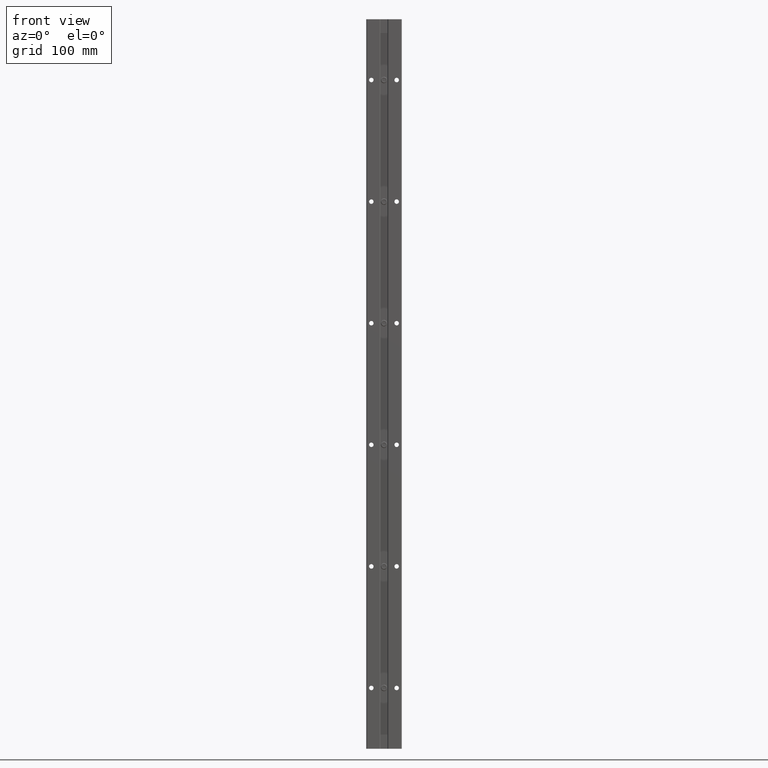
[diagram: clean part render]
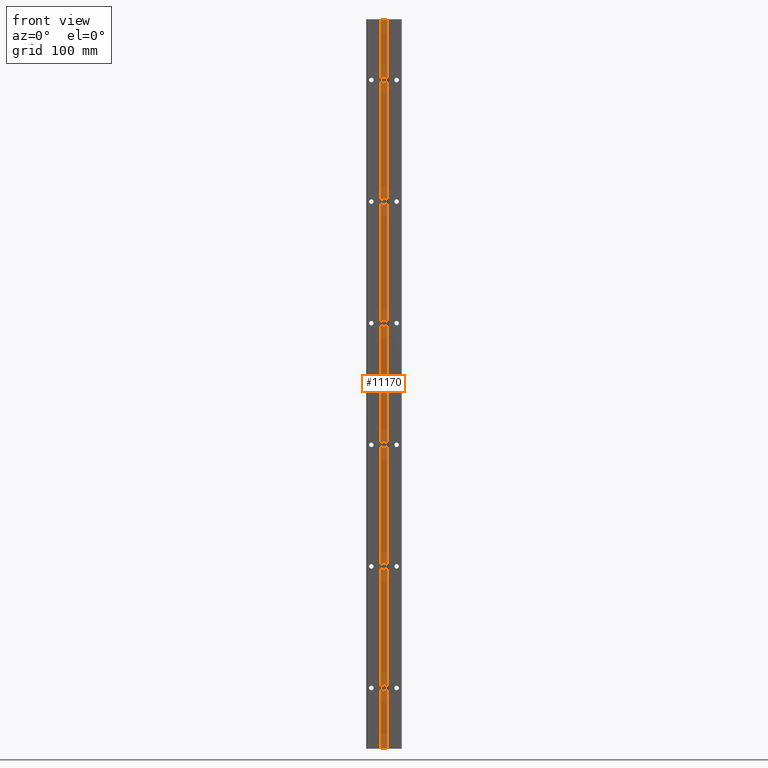
[diagram: same view with one face highlighted and labeled with its STEP entity id]
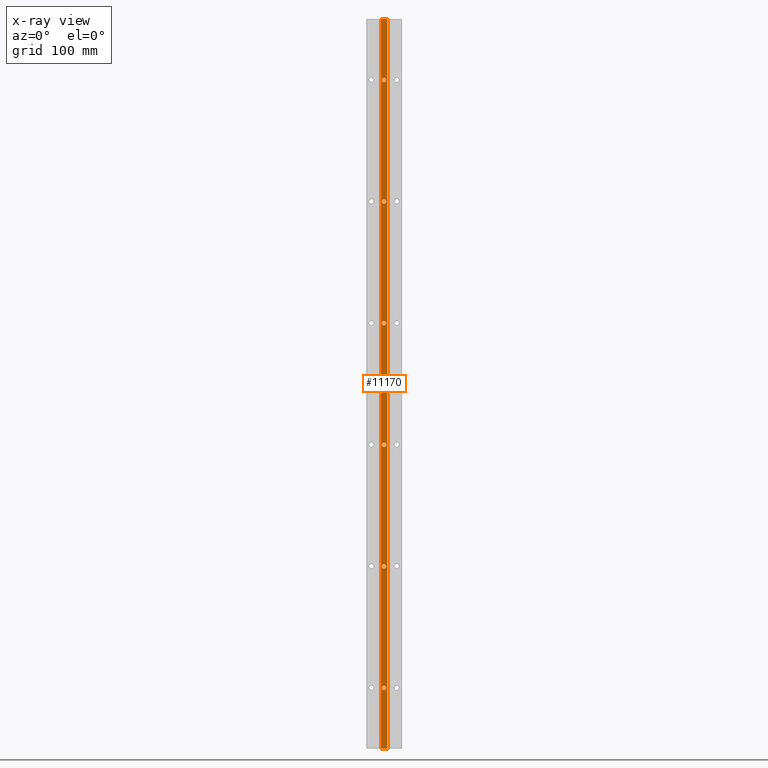
[diagram: x-ray of the same camera — body ghosted, the highlighted face saturated]
A machine part, front view. The second image highlights one B-rep face of the part: STEP entity #11170.
The next image is the same camera in x-ray: the body ghosted, the highlighted face saturated — about 0% of this face is hidden behind the body in this view.
In plain terms, the highlighted planar face has unit normal (-0, -1, 0).
Its self-contained STEP definition (entity closure, byte-faithful):
#18 = CARTESIAN_POINT ( 'NONE',  ( -0.1599999999999985600, 0.2050000000000006262, 0.000000000000000000 ) ) ;
#101 = CARTESIAN_POINT ( 'NONE',  ( 1.353234713057833237E-17, 0.2050000000000004041, -8.889500000000001734 ) ) ;
#144 = CARTESIAN_POINT ( 'NONE',  ( 4.372847730754425919E-32, 0.2050000000000004041, -3.110500000000000043 ) ) ;
#146 = VERTEX_POINT ( 'NONE', #8821 ) ;
#155 = ORIENTED_EDGE ( 'NONE', *, *, #12524, .T. ) ;
#235 = DIRECTION ( 'NONE',  ( 6.402768735150685389E-16, 1.000000000000000000, -0.000000000000000000 ) ) ;
#242 = LINE ( 'NONE', #12827, #8181 ) ;
#269 = AXIS2_PLACEMENT_3D ( 'NONE', #374, #235, #3421 ) ;
#278 = CARTESIAN_POINT ( 'NONE',  ( 1.353234713057833237E-17, 0.2050000000000004041, -2.889500000000000401 ) ) ;
#304 = EDGE_CURVE ( 'NONE', #1727, #9634, #10383, .T. ) ;
#359 = CARTESIAN_POINT ( 'NONE',  ( 0.000000000000000000, 0.2050000000000004041, -33.00000000000000000 ) ) ;
#364 = LINE ( 'NONE', #11001, #2127 ) ;
#374 = CARTESIAN_POINT ( 'NONE',  ( 0.000000000000000000, 0.2050000000000004041, -3.000000000000000444 ) ) ;
#507 = CARTESIAN_POINT ( 'NONE',  ( -0.1599999999999985600, 0.2050000000000006539, 0.000000000000000000 ) ) ;
#607 = EDGE_CURVE ( 'NONE', #146, #3300, #13480, .T. ) ;
#633 = ORIENTED_EDGE ( 'NONE', *, *, #13449, .T. ) ;
#722 = DIRECTION ( 'NONE',  ( 1.000000000000000000, -6.402768735150685389E-16, 0.000000000000000000 ) ) ;
#906 = DIRECTION ( 'NONE',  ( 1.000000000000000000, -6.180651569376158219E-16, 0.000000000000000000 ) ) ;
#979 = DIRECTION ( 'NONE',  ( 1.000000000000000000, -6.180651569376158219E-16, 0.000000000000000000 ) ) ;
#1125 = ORIENTED_EDGE ( 'NONE', *, *, #6128, .T. ) ;
#1375 = EDGE_CURVE ( 'NONE', #10531, #12070, #12616, .T. ) ;
#1460 = DIRECTION ( 'NONE',  ( 6.402768735150685389E-16, 1.000000000000000000, -0.000000000000000000 ) ) ;
#1471 = ORIENTED_EDGE ( 'NONE', *, *, #9283, .T. ) ;
#1491 = DIRECTION ( 'NONE',  ( -1.000000000000000000, 6.402768735150685389E-16, 0.000000000000000000 ) ) ;
#1628 = DIRECTION ( 'NONE',  ( 1.000000000000000000, -6.180651569376158219E-16, 0.000000000000000000 ) ) ;
#1727 = VERTEX_POINT ( 'NONE', #13528 ) ;
#1737 = DIRECTION ( 'NONE',  ( -6.402768735150685389E-16, -1.000000000000000000, 0.000000000000000000 ) ) ;
#1797 = VERTEX_POINT ( 'NONE', #5507 ) ;
#1820 = ORIENTED_EDGE ( 'NONE', *, *, #5357, .T. ) ;
#2007 = DIRECTION ( 'NONE',  ( 6.402768735150685389E-16, 1.000000000000000000, -0.000000000000000000 ) ) ;
#2010 = CARTESIAN_POINT ( 'NONE',  ( 0.000000000000000000, 0.2050000000000004041, -15.00000000000000000 ) ) ;
#2018 = EDGE_CURVE ( 'NONE', #11257, #3040, #11767, .T. ) ;
#2127 = VECTOR ( 'NONE', #7573, 39.37007874015748143 ) ;
#2217 = DIRECTION ( 'NONE',  ( 1.000000000000000000, -6.180651569376158219E-16, 0.000000000000000000 ) ) ;
#2295 = VERTEX_POINT ( 'NONE', #278 ) ;
#2557 = CIRCLE ( 'NONE', #10232, 0.1105000000000000565 ) ;
#2634 = AXIS2_PLACEMENT_3D ( 'NONE', #359, #1460, #3539 ) ;
#2662 = CARTESIAN_POINT ( 'NONE',  ( 0.000000000000000000, 0.2050000000000004041, -33.00000000000000000 ) ) ;
#2772 = PLANE ( 'NONE',  #8016 ) ;
#2878 = VERTEX_POINT ( 'NONE', #9785 ) ;
#3040 = VERTEX_POINT ( 'NONE', #507 ) ;
#3300 = VERTEX_POINT ( 'NONE', #101 ) ;
#3381 = EDGE_CURVE ( 'NONE', #7132, #11257, #242, .T. ) ;
#3421 = DIRECTION ( 'NONE',  ( 1.000000000000000000, -6.180651569376158219E-16, 0.000000000000000000 ) ) ;
#3458 = CARTESIAN_POINT ( 'NONE',  ( 4.372847730754339432E-32, 0.2050000000000004041, -21.11050000000000537 ) ) ;
#3539 = DIRECTION ( 'NONE',  ( 1.000000000000000000, -6.180651569376158219E-16, 0.000000000000000000 ) ) ;
#3685 = EDGE_CURVE ( 'NONE', #3040, #1797, #7180, .T. ) ;
#3734 = CARTESIAN_POINT ( 'NONE',  ( 1.353234713057833237E-17, 0.2050000000000004041, -14.88949999999999996 ) ) ;
#3745 = DIRECTION ( 'NONE',  ( 1.000000000000000000, -6.180651569376158219E-16, 0.000000000000000000 ) ) ;
#3753 = CARTESIAN_POINT ( 'NONE',  ( 1.353234713057806428E-17, 0.2050000000000004041, -26.88950000000000173 ) ) ;
#3841 = ORIENTED_EDGE ( 'NONE', *, *, #5776, .T. ) ;
#3880 = DIRECTION ( 'NONE',  ( 6.402768735150685389E-16, 1.000000000000000000, -0.000000000000000000 ) ) ;
#3948 = AXIS2_PLACEMENT_3D ( 'NONE', #2010, #8266, #1628 ) ;
#3957 = DIRECTION ( 'NONE',  ( 1.000000000000000000, -6.180651569376158219E-16, 0.000000000000000000 ) ) ;
#4005 = DIRECTION ( 'NONE',  ( 6.402768735150685389E-16, 1.000000000000000000, -0.000000000000000000 ) ) ;
#4045 = AXIS2_PLACEMENT_3D ( 'NONE', #7433, #10591, #2217 ) ;
#4146 = EDGE_CURVE ( 'NONE', #13124, #5248, #5592, .T. ) ;
#4562 = CARTESIAN_POINT ( 'NONE',  ( -0.1599999999999985600, 0.2050000000000006539, -36.00000000000000000 ) ) ;
#4577 = CIRCLE ( 'NONE', #7404, 0.1105000000000000565 ) ;
#4608 = ORIENTED_EDGE ( 'NONE', *, *, #1375, .T. ) ;
#4679 = CARTESIAN_POINT ( 'NONE',  ( 1.353234713057806428E-17, 0.2050000000000004041, -20.88950000000000173 ) ) ;
#4817 = CIRCLE ( 'NONE', #3948, 0.1105000000000000565 ) ;
#4881 = VECTOR ( 'NONE', #6630, 39.37007874015748143 ) ;
#5149 = VECTOR ( 'NONE', #8345, 39.37007874015748143 ) ;
#5248 = VERTEX_POINT ( 'NONE', #3734 ) ;
#5257 = CIRCLE ( 'NONE', #6103, 0.1105000000000000565 ) ;
#5357 = EDGE_CURVE ( 'NONE', #11023, #2878, #2557, .T. ) ;
#5507 = CARTESIAN_POINT ( 'NONE',  ( 0.1599999999999980327, 0.2050000000000004041, 0.000000000000000000 ) ) ;
#5592 = CIRCLE ( 'NONE', #7329, 0.1105000000000000565 ) ;
#5666 = DIRECTION ( 'NONE',  ( 6.402768735150685389E-16, 1.000000000000000000, -0.000000000000000000 ) ) ;
#5721 = EDGE_LOOP ( 'NONE', ( #5819, #3841 ) ) ;
#5776 = EDGE_CURVE ( 'NONE', #3300, #146, #8934, .T. ) ;
#5812 = AXIS2_PLACEMENT_3D ( 'NONE', #7009, #4005, #906 ) ;
#5819 = ORIENTED_EDGE ( 'NONE', *, *, #607, .T. ) ;
#5950 = CARTESIAN_POINT ( 'NONE',  ( -0.1599999999999985600, 0.2050000000000006262, -38.10463218188032641 ) ) ;
#6103 = AXIS2_PLACEMENT_3D ( 'NONE', #13272, #3880, #8033 ) ;
#6128 = EDGE_CURVE ( 'NONE', #12070, #10531, #5257, .T. ) ;
#6162 = CARTESIAN_POINT ( 'NONE',  ( 4.372847730754425919E-32, 0.2050000000000004041, -15.11050000000000004 ) ) ;
#6458 = CIRCLE ( 'NONE', #8862, 0.1105000000000000565 ) ;
#6630 = DIRECTION ( 'NONE',  ( 0.000000000000000000, 0.000000000000000000, 1.000000000000000000 ) ) ;
#6687 = EDGE_CURVE ( 'NONE', #5248, #13124, #4817, .T. ) ;
#6750 = ORIENTED_EDGE ( 'NONE', *, *, #4146, .T. ) ;
#6755 = VERTEX_POINT ( 'NONE', #144 ) ;
#6823 = CARTESIAN_POINT ( 'NONE',  ( 0.000000000000000000, 0.2050000000000004041, -3.000000000000000444 ) ) ;
#6892 = FACE_BOUND ( 'NONE', #11543, .T. ) ;
#7009 = CARTESIAN_POINT ( 'NONE',  ( 0.000000000000000000, 0.2050000000000004041, -9.000000000000001776 ) ) ;
#7128 = EDGE_LOOP ( 'NONE', ( #12472, #12960, #12379, #12152 ) ) ;
#7132 = VERTEX_POINT ( 'NONE', #13061 ) ;
#7180 = LINE ( 'NONE', #18, #5149 ) ;
#7281 = DIRECTION ( 'NONE',  ( 6.402768735150685389E-16, 1.000000000000000000, -0.000000000000000000 ) ) ;
#7329 = AXIS2_PLACEMENT_3D ( 'NONE', #10050, #5666, #3745 ) ;
#7404 = AXIS2_PLACEMENT_3D ( 'NONE', #10378, #9277, #979 ) ;
#7433 = CARTESIAN_POINT ( 'NONE',  ( 0.000000000000000000, 0.2050000000000004041, -27.00000000000000355 ) ) ;
#7467 = ORIENTED_EDGE ( 'NONE', *, *, #304, .T. ) ;
#7573 = DIRECTION ( 'NONE',  ( 0.000000000000000000, 0.000000000000000000, 1.000000000000000000 ) ) ;
#7907 = FACE_BOUND ( 'NONE', #10636, .T. ) ;
#7991 = AXIS2_PLACEMENT_3D ( 'NONE', #8395, #11342, #8186 ) ;
#8016 = AXIS2_PLACEMENT_3D ( 'NONE', #5950, #1737, #722 ) ;
#8033 = DIRECTION ( 'NONE',  ( 1.000000000000000000, -6.180651569376158219E-16, 0.000000000000000000 ) ) ;
#8119 = FACE_BOUND ( 'NONE', #9188, .T. ) ;
#8181 = VECTOR ( 'NONE', #1491, 39.37007874015748143 ) ;
#8186 = DIRECTION ( 'NONE',  ( 1.000000000000000000, -6.180651569376158219E-16, 0.000000000000000000 ) ) ;
#8266 = DIRECTION ( 'NONE',  ( 6.402768735150685389E-16, 1.000000000000000000, -0.000000000000000000 ) ) ;
#8329 = CARTESIAN_POINT ( 'NONE',  ( 0.000000000000000000, 0.2050000000000004041, -9.000000000000001776 ) ) ;
#8345 = DIRECTION ( 'NONE',  ( 1.000000000000000000, -6.402768735150685389E-16, 0.000000000000000000 ) ) ;
#8395 = CARTESIAN_POINT ( 'NONE',  ( 0.000000000000000000, 0.2050000000000004041, -21.00000000000000355 ) ) ;
#8401 = CIRCLE ( 'NONE', #269, 0.1105000000000000565 ) ;
#8821 = CARTESIAN_POINT ( 'NONE',  ( 4.372847730754425919E-32, 0.2050000000000004041, -9.110500000000001819 ) ) ;
#8862 = AXIS2_PLACEMENT_3D ( 'NONE', #6823, #7281, #9334 ) ;
#8934 = CIRCLE ( 'NONE', #9371, 0.1105000000000000565 ) ;
#9016 = FACE_OUTER_BOUND ( 'NONE', #7128, .T. ) ;
#9188 = EDGE_LOOP ( 'NONE', ( #7467, #155 ) ) ;
#9277 = DIRECTION ( 'NONE',  ( 6.402768735150685389E-16, 1.000000000000000000, -0.000000000000000000 ) ) ;
#9283 = EDGE_CURVE ( 'NONE', #2295, #6755, #8401, .T. ) ;
#9334 = DIRECTION ( 'NONE',  ( 1.000000000000000000, -6.180651569376158219E-16, 0.000000000000000000 ) ) ;
#9371 = AXIS2_PLACEMENT_3D ( 'NONE', #8329, #2007, #3957 ) ;
#9481 = ORIENTED_EDGE ( 'NONE', *, *, #6687, .T. ) ;
#9628 = EDGE_CURVE ( 'NONE', #6755, #2295, #6458, .T. ) ;
#9634 = VERTEX_POINT ( 'NONE', #3753 ) ;
#9785 = CARTESIAN_POINT ( 'NONE',  ( 4.372847730754339432E-32, 0.2050000000000004041, -33.11050000000000182 ) ) ;
#9794 = CARTESIAN_POINT ( 'NONE',  ( -0.1599999999999985600, 0.2050000000000006539, -38.10463218188032641 ) ) ;
#10050 = CARTESIAN_POINT ( 'NONE',  ( 0.000000000000000000, 0.2050000000000004041, -15.00000000000000000 ) ) ;
#10060 = FACE_BOUND ( 'NONE', #5721, .T. ) ;
#10232 = AXIS2_PLACEMENT_3D ( 'NONE', #2662, #11147, #13171 ) ;
#10378 = CARTESIAN_POINT ( 'NONE',  ( 0.000000000000000000, 0.2050000000000004041, -27.00000000000000355 ) ) ;
#10383 = CIRCLE ( 'NONE', #4045, 0.1105000000000000565 ) ;
#10531 = VERTEX_POINT ( 'NONE', #4679 ) ;
#10591 = DIRECTION ( 'NONE',  ( 6.402768735150685389E-16, 1.000000000000000000, -0.000000000000000000 ) ) ;
#10636 = EDGE_LOOP ( 'NONE', ( #633, #1820 ) ) ;
#10838 = ORIENTED_EDGE ( 'NONE', *, *, #9628, .T. ) ;
#11001 = CARTESIAN_POINT ( 'NONE',  ( 0.1599999999999980327, 0.2050000000000004041, -38.10463218188032641 ) ) ;
#11023 = VERTEX_POINT ( 'NONE', #11213 ) ;
#11147 = DIRECTION ( 'NONE',  ( 6.402768735150685389E-16, 1.000000000000000000, -0.000000000000000000 ) ) ;
#11170 = ADVANCED_FACE ( 'NONE', ( #10060, #13216, #6892, #8119, #7907, #12112, #9016 ), #2772, .T. ) ;
#11213 = CARTESIAN_POINT ( 'NONE',  ( 1.353234713057806428E-17, 0.2050000000000004041, -32.88949999999999818 ) ) ;
#11257 = VERTEX_POINT ( 'NONE', #4562 ) ;
#11342 = DIRECTION ( 'NONE',  ( 6.402768735150685389E-16, 1.000000000000000000, -0.000000000000000000 ) ) ;
#11543 = EDGE_LOOP ( 'NONE', ( #1125, #4608 ) ) ;
#11761 = EDGE_CURVE ( 'NONE', #7132, #1797, #364, .T. ) ;
#11767 = LINE ( 'NONE', #9794, #4881 ) ;
#11882 = EDGE_LOOP ( 'NONE', ( #6750, #9481 ) ) ;
#12022 = EDGE_LOOP ( 'NONE', ( #10838, #1471 ) ) ;
#12070 = VERTEX_POINT ( 'NONE', #3458 ) ;
#12112 = FACE_BOUND ( 'NONE', #12022, .T. ) ;
#12152 = ORIENTED_EDGE ( 'NONE', *, *, #2018, .F. ) ;
#12379 = ORIENTED_EDGE ( 'NONE', *, *, #3685, .F. ) ;
#12472 = ORIENTED_EDGE ( 'NONE', *, *, #3381, .F. ) ;
#12524 = EDGE_CURVE ( 'NONE', #9634, #1727, #4577, .T. ) ;
#12616 = CIRCLE ( 'NONE', #7991, 0.1105000000000000565 ) ;
#12827 = CARTESIAN_POINT ( 'NONE',  ( -0.1599999999999985600, 0.2050000000000006262, -36.00000000000000000 ) ) ;
#12960 = ORIENTED_EDGE ( 'NONE', *, *, #11761, .T. ) ;
#13061 = CARTESIAN_POINT ( 'NONE',  ( 0.1599999999999980327, 0.2050000000000004041, -36.00000000000000000 ) ) ;
#13124 = VERTEX_POINT ( 'NONE', #6162 ) ;
#13171 = DIRECTION ( 'NONE',  ( 1.000000000000000000, -6.180651569376158219E-16, 0.000000000000000000 ) ) ;
#13216 = FACE_BOUND ( 'NONE', #11882, .T. ) ;
#13272 = CARTESIAN_POINT ( 'NONE',  ( 0.000000000000000000, 0.2050000000000004041, -21.00000000000000355 ) ) ;
#13449 = EDGE_CURVE ( 'NONE', #2878, #11023, #13602, .T. ) ;
#13480 = CIRCLE ( 'NONE', #5812, 0.1105000000000000565 ) ;
#13528 = CARTESIAN_POINT ( 'NONE',  ( 4.372847730754339432E-32, 0.2050000000000004041, -27.11050000000000537 ) ) ;
#13602 = CIRCLE ( 'NONE', #2634, 0.1105000000000000565 ) ;